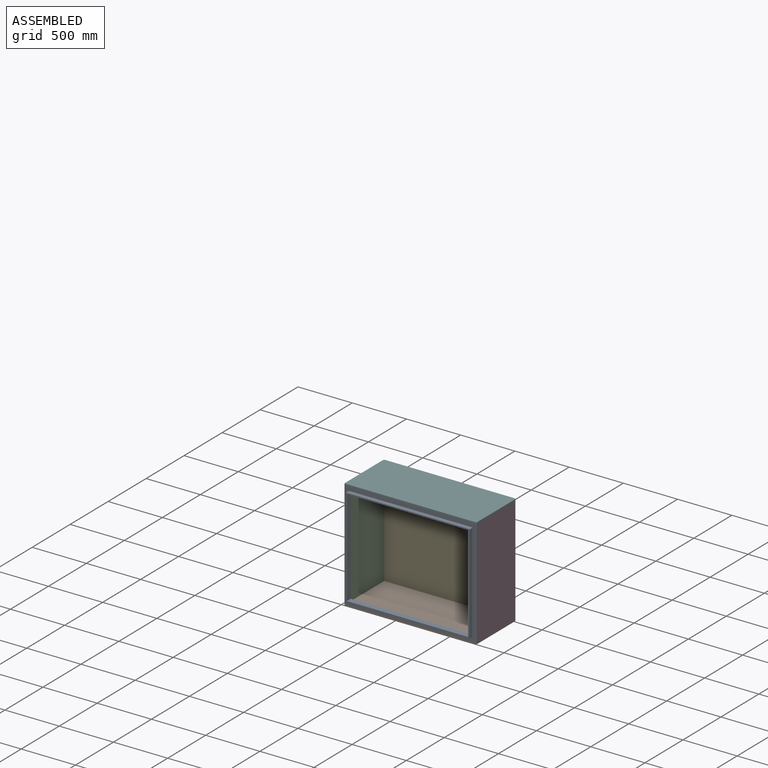
[diagram: assembled view]
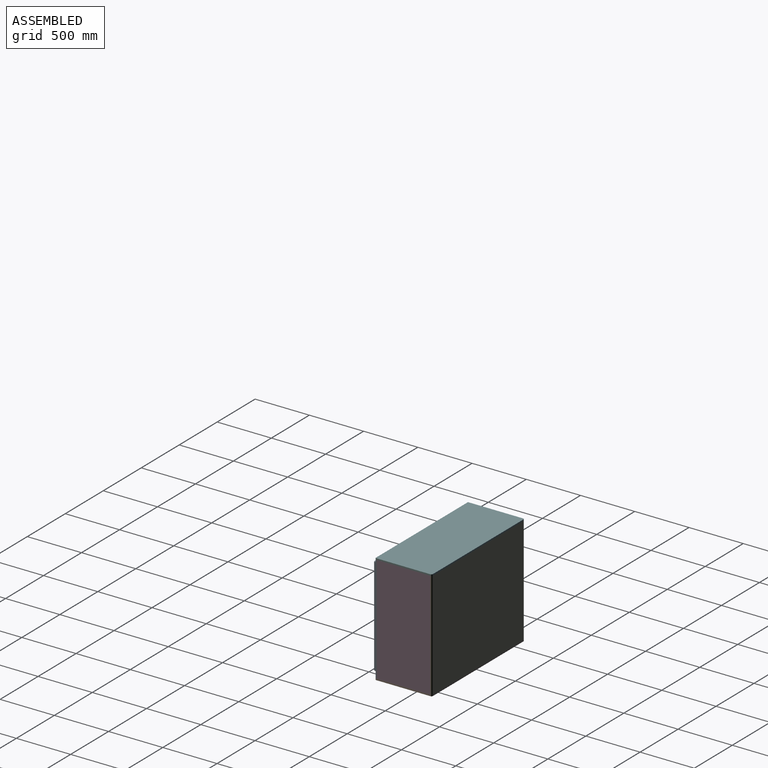
[diagram: assembled view, second angle]
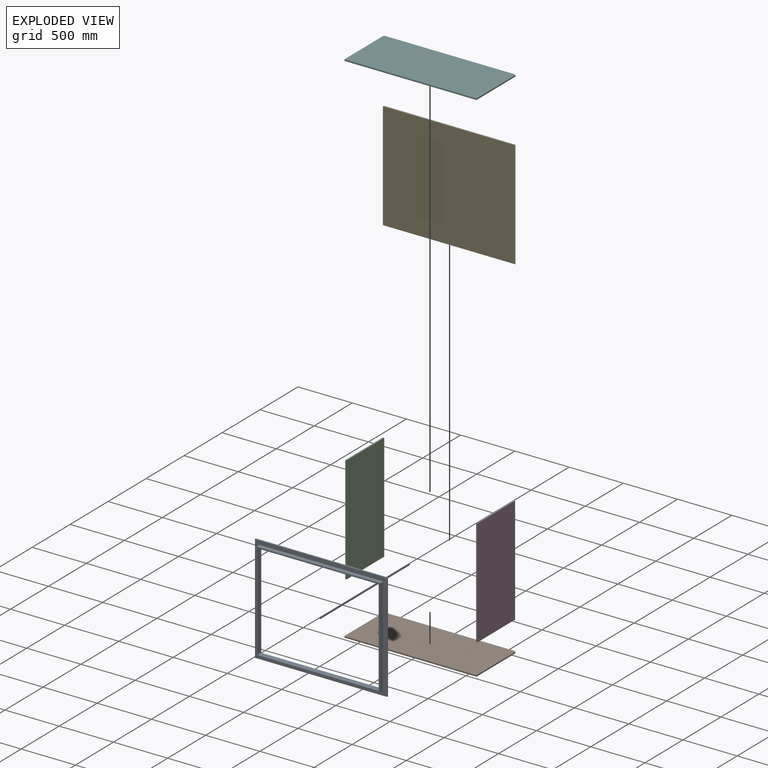
[diagram: exploded view]
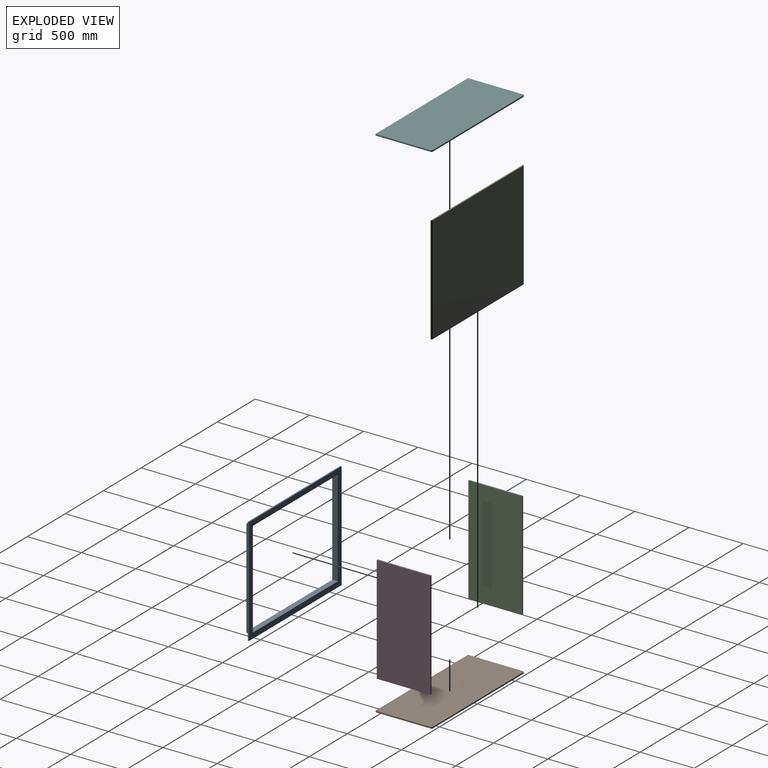
[diagram: exploded view, second angle]
ASSEMBLY  parts=6 mates=5
PART A: 21 faces, bbox 1219.2x50.8x990.6 mm
  f0: cylinder r=6.35mm len=38.1mm, axis (0,1,0), area 380mm2, adj f1,f11,f12,f18
  f1: plane 1130.3x38.1mm, normal (0,0,1), area 43064.4mm2, adj f0,f2,f12,f18
  f2: cylinder r=6.35mm len=38.1mm, axis (0,1,0), area 380mm2, adj f1,f3,f12,f18
  f3: plane 901.7x38.1mm, normal (-1,0,0), area 34354.8mm2, adj f2,f4,f12,f18
  f4: cylinder r=6.35mm len=38.1mm, axis (0,1,0), area 380mm2, adj f3,f5,f12,f18
  f5: plane 1130.3x38.1mm, normal (0,0,-1), area 43064.4mm2, adj f4,f6,f12,f18
  f6: cylinder r=6.35mm len=38.1mm, axis (0,1,0), area 380mm2, adj f5,f11,f12,f18
  f7: plane 889x50.8mm, normal (-1,0,0), area 45161.2mm2, adj f8,f10,f12,f13
  f8: plane 1117.6x50.8mm, normal (0,0,1), area 56774.1mm2, adj f7,f9,f12,f13
  f9: plane 889x50.8mm, normal (1,0,0), area 45161.2mm2, adj f8,f10,f12,f13
  f10: plane 1117.6x50.8mm, normal (0,0,-1), area 56774.1mm2, adj f7,f9,f12,f13
  f11: plane 901.7x38.1mm, normal (1,0,0), area 34354.8mm2, adj f0,f6,f12,f18
  f12: plane 1143x914.4mm, normal (0,-1,0), area 51578.2mm2, adj f0,f1,f2,f3,f4,f5,f6,f7
  f13: plane 1219.2x990.6mm, normal (0,1,0), area 214193.1mm2, adj f7,f8,f9,f10,f14,f15,f16,f17
  f14: plane 1219.2x12.7mm, normal (0,0,-1), area 15479.5mm2, adj f13,f15,f17,f18,f19,f20
  f15: plane 990.6x9.53mm, normal (1,0,0), area 9435.5mm2, adj f13,f14,f16,f19
  f16: plane 1219.2x12.7mm, normal (0,0,1), area 15479.5mm2, adj f13,f15,f17,f18,f19,f20
  f17: plane 990.6x9.53mm, normal (-1,0,0), area 9435.5mm2, adj f13,f14,f16,f20
  f18: plane 1212.85x990.6mm, normal (0,-1,0), area 156324.6mm2, adj f0,f1,f2,f3,f4,f5,f6,f11
  f19: cylinder r=3.17mm len=990.6mm, axis (0,0,-1), area 4940.4mm2, adj f14,f15,f16,f18
  f20: cylinder r=3.17mm len=990.6mm, axis (0,0,1), area 4940.4mm2, adj f14,f16,f17,f18
PART B: 10 faces, bbox 1219.2x520.7x12.7 mm
  f0: plane 1212.85x12.7mm, normal (0,-1,0), area 15403.2mm2, adj f4,f5,f6,f7
  f1: plane 504.83x12.7mm, normal (1,0,0), area 6411.3mm2, adj f4,f5,f6,f8
  f2: plane 1193.8x12.7mm, normal (0,1,0), area 15161.3mm2, adj f4,f5,f8,f9
  f3: plane 504.83x12.7mm, normal (-1,0,0), area 6411.3mm2, adj f4,f5,f7,f9
  f4: plane 1219.2x520.7mm, normal (0,0,-1), area 634763.9mm2, adj f0,f1,f2,f3,f6,f7,f8,f9
  f5: plane 1219.2x520.7mm, normal (0,0,1), area 634763.9mm2, adj f0,f1,f2,f3,f6,f7,f8,f9
  f6: cylinder r=3.17mm len=12.7mm, axis (0,0,1), area 63.3mm2, adj f0,f1,f4,f5
  f7: cylinder r=3.17mm len=12.7mm, axis (0,0,-1), area 63.3mm2, adj f0,f3,f4,f5
  f8: cylinder r=12.7mm len=12.7mm, axis (0,0,-1), area 253.4mm2, adj f1,f2,f4,f5
  f9: cylinder r=12.7mm len=12.7mm, axis (0,0,1), area 253.4mm2, adj f2,f3,f4,f5
PART C: 6 faces, bbox 12.7x495.3x990.6 mm
  f0: plane 495.3x12.7mm, normal (0,0,-1), area 6290.3mm2, adj f1,f3,f4,f5
  f1: plane 990.6x12.7mm, normal (0,1,0), area 12580.6mm2, adj f0,f2,f4,f5
  f2: plane 495.3x12.7mm, normal (0,0,1), area 6290.3mm2, adj f1,f3,f4,f5
  f3: plane 990.6x12.7mm, normal (0,-1,0), area 12580.6mm2, adj f0,f2,f4,f5
  f4: plane 990.6x495.3mm, normal (1,0,0), area 490644.2mm2, adj f0,f1,f2,f3
  f5: plane 990.6x495.3mm, normal (-1,0,0), area 490644.2mm2, adj f0,f1,f2,f3
PART D: same geometry as C
PART E: 6 faces, bbox 1219.2x12.7x990.6 mm
  f0: plane 1219.2x12.7mm, normal (0,0,-1), area 15414.6mm2, adj f2,f3,f4,f5
  f1: plane 1219.2x12.7mm, normal (0,0,1), area 15414.6mm2, adj f2,f3,f4,f5
  f2: plane 1219.2x990.6mm, normal (0,-1,0), area 1207739.5mm2, adj f0,f1,f4,f5
  f3: plane 1193.8x990.6mm, normal (0,1,0), area 1182578.3mm2, adj f0,f1,f4,f5
  f4: cylinder r=12.7mm len=990.6mm, axis (0,0,1), area 19761.6mm2, adj f0,f1,f2,f3
  f5: cylinder r=12.7mm len=990.6mm, axis (0,0,-1), area 19761.6mm2, adj f0,f1,f2,f3
PART F: same geometry as B
PLACE A t=(-502.22,-1.95,-175.34)mm
PLACE B t=(-502.22,245.7,-670.64)mm
PLACE C t=(-1111.82,245.7,-175.34)mm
PLACE D t=(94.68,245.7,-175.34)mm
PLACE E t=(-502.22,506.05,-175.34)mm
PLACE F t=(-502.22,245.7,332.66)mm
MATE fastened F.f9 <-> E.f5  axis (0,0,-1) through (-1099.12,493.35,319.96)mm
MATE fastened E.f4 <-> B.f8  axis (0,0,-1) through (94.68,493.35,-670.64)mm
MATE fastened A.f19 <-> B.f6  axis (0,0,-1) through (104.21,-11.48,-670.64)mm
MATE fastened D.f0 <-> B.f5  axis (0,0,-1) through (107.38,245.7,-670.64)mm
MATE fastened C.f0 <-> B.f5  axis (0,0,-1) through (-1111.82,245.7,-670.64)mm
